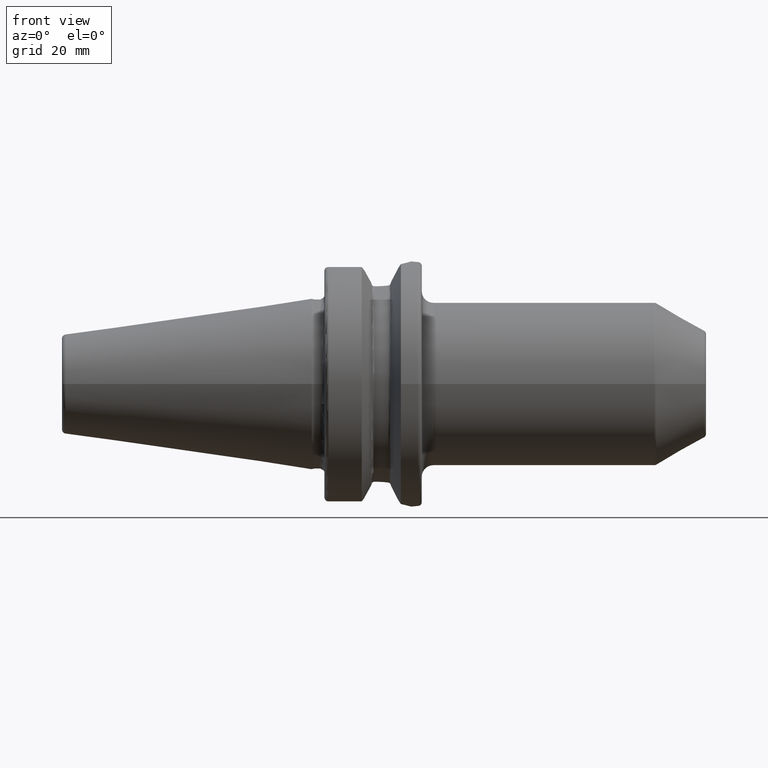
[diagram: clean part render]
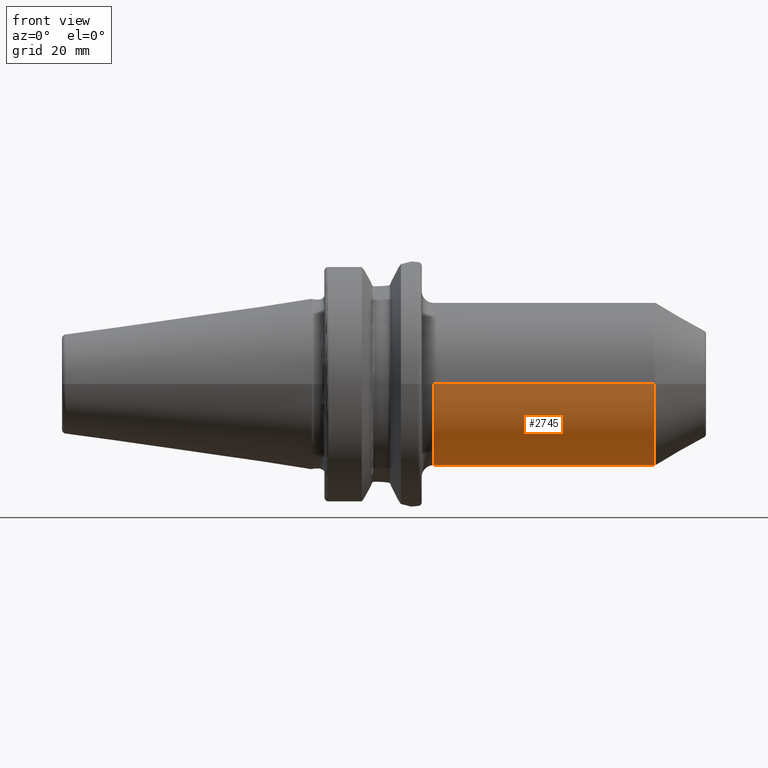
[diagram: same view with one face highlighted and labeled with its STEP entity id]
A machine part, front view. The second image highlights one B-rep face of the part: STEP entity #2745.
In plain terms, the highlighted cylindrical surface (partial cylindrical patch) has radius 21 mm, axis along (1, 0, 0).
Its self-contained STEP definition (entity closure, byte-faithful):
#866=CARTESIAN_POINT('',(8.26E1,2.1E1,0.E0));
#885=CARTESIAN_POINT('',(7.24E1,2.1E1,0.E0));
#897=CARTESIAN_POINT('',(8.673205080757E1,0.E0,0.E0));
#898=DIRECTION('',(-1.E0,0.E0,0.E0));
#899=DIRECTION('',(0.E0,1.E0,0.E0));
#900=AXIS2_PLACEMENT_3D('',#897,#898,#899);
#902=DIRECTION('',(-1.E0,0.E0,4.692377701009E-13));
#903=VECTOR('',#902,4.132050807569E0);
#904=CARTESIAN_POINT('',(8.673205080757E1,2.1E1,-1.937628427748E-12));
#905=LINE('',#904,#903);
#906=CARTESIAN_POINT('',(7.24E1,2.1E1,0.E0));
#907=CARTESIAN_POINT('',(7.24E1,2.1E1,-3.120833761628E-1));
#908=CARTESIAN_POINT('',(7.245594912861E1,2.098629632983E1,-9.277207349751E-1));
#909=CARTESIAN_POINT('',(7.271319860121E1,2.092531205576E1,-1.842995562252E0));
#910=CARTESIAN_POINT('',(7.313320620521E1,2.083218391533E1,-2.691100684063E0));
#911=CARTESIAN_POINT('',(7.370880463506E1,2.071791306426E1,-3.455260835791E0));
#912=CARTESIAN_POINT('',(7.441097635934E1,2.059954871467E1,-4.095342612871E0));
#913=CARTESIAN_POINT('',(7.522722337886E1,2.049189688120E1,-4.598203443930E0));
#914=CARTESIAN_POINT('',(7.610349091723E1,2.041239511509E1,-4.935097754867E0));
#915=CARTESIAN_POINT('',(7.703453037285E1,2.036947596656E1,-5.107395408550E0));
#916=CARTESIAN_POINT('',(7.796447621994E1,2.036944885397E1,-5.107505620358E0));
#917=CARTESIAN_POINT('',(7.889573062844E1,2.041234529035E1,-4.935293361558E0));
#918=CARTESIAN_POINT('',(7.977167106705E1,2.049176920913E1,-4.598783942138E0));
#919=CARTESIAN_POINT('',(8.058865920744E1,2.059949497822E1,-4.095579468699E0));
#920=CARTESIAN_POINT('',(8.129000797984E1,2.071769681257E1,-3.456559886511E0));
#921=CARTESIAN_POINT('',(8.186658461553E1,2.083213406699E1,-2.691509273024E0));
#922=CARTESIAN_POINT('',(8.228643678734E1,2.092522989534E1,-1.843934746462E0));
#923=CARTESIAN_POINT('',(8.254409536266E1,2.098630553696E1,-9.277719643677E-1));
#924=CARTESIAN_POINT('',(8.26E1,2.1E1,-3.120915795046E-1));
#925=CARTESIAN_POINT('',(8.26E1,2.1E1,0.E0));
#927=DIRECTION('',(-1.E0,0.E0,3.472114498431E-14));
#928=VECTOR('',#927,4.24E1);
#929=CARTESIAN_POINT('',(7.24E1,2.1E1,0.E0));
#930=LINE('',#929,#928);
#931=CARTESIAN_POINT('',(3.E1,0.E0,0.E0));
#932=DIRECTION('',(1.E0,0.E0,0.E0));
#933=DIRECTION('',(0.E0,-1.E0,0.E0));
#934=AXIS2_PLACEMENT_3D('',#931,#932,#933);
#936=DIRECTION('',(-1.E0,0.E0,-6.012692982096E-14));
#937=VECTOR('',#936,5.673205080757E1);
#938=CARTESIAN_POINT('',(8.673205080757E1,-2.1E1,1.936983976993E-12));
#939=LINE('',#938,#937);
#1527=VERTEX_POINT('',#866);
#1528=VERTEX_POINT('',#885);
#1535=CARTESIAN_POINT('',(3.E1,-2.1E1,0.E0));
#1536=CARTESIAN_POINT('',(3.E1,2.1E1,0.E0));
#1537=VERTEX_POINT('',#1535);
#1538=VERTEX_POINT('',#1536);
#1539=CARTESIAN_POINT('',(8.673205080757E1,2.1E1,0.E0));
#1540=CARTESIAN_POINT('',(8.673205080757E1,-2.1E1,0.E0));
#1541=VERTEX_POINT('',#1539);
#1542=VERTEX_POINT('',#1540);
#2731=CARTESIAN_POINT('',(2.335E1,0.E0,0.E0));
#2732=DIRECTION('',(1.E0,0.E0,0.E0));
#2733=DIRECTION('',(0.E0,-1.E0,0.E0));
#2734=AXIS2_PLACEMENT_3D('',#2731,#2732,#2733);
#2735=CYLINDRICAL_SURFACE('',#2734,2.1E1);
#2736=ORIENTED_EDGE('',*,*,#2722,.F.);
#2737=ORIENTED_EDGE('',*,*,#2697,.T.);
#2739=ORIENTED_EDGE('',*,*,#2738,.F.);
#2740=ORIENTED_EDGE('',*,*,#2693,.T.);
#2741=ORIENTED_EDGE('',*,*,#2663,.F.);
#2742=ORIENTED_EDGE('',*,*,#2690,.F.);
#2743=EDGE_LOOP('',(#2736,#2737,#2739,#2740,#2741,#2742));
#2744=FACE_OUTER_BOUND('',#2743,.F.);
#2745=ADVANCED_FACE('',(#2744),#2735,.T.);
#901=CIRCLE('',#900,2.1E1);
#926=B_SPLINE_CURVE_WITH_KNOTS('',3,(#906,#907,#908,#909,#910,#911,#912,#913,
#914,#915,#916,#917,#918,#919,#920,#921,#922,#923,#924,#925),.UNSPECIFIED.,.F.,
.F.,(4,1,1,1,1,1,1,1,1,1,1,1,1,1,1,1,1,4),(0.E0,5.882352941176E-2,
1.176470588235E-1,1.764705882353E-1,2.352941176471E-1,2.941176470588E-1,
3.529411764706E-1,4.117647058824E-1,4.705882352941E-1,5.294117647059E-1,
5.882352941176E-1,6.470588235294E-1,7.058823529412E-1,7.647058823529E-1,
8.235294117647E-1,8.823529411765E-1,9.411764705882E-1,1.E0),.UNSPECIFIED.);
#935=CIRCLE('',#934,2.1E1);
#2663=EDGE_CURVE('',#1537,#1538,#935,.T.);
#2690=EDGE_CURVE('',#1542,#1537,#939,.T.);
#2693=EDGE_CURVE('',#1528,#1538,#930,.T.);
#2697=EDGE_CURVE('',#1541,#1527,#905,.T.);
#2722=EDGE_CURVE('',#1541,#1542,#901,.T.);
#2738=EDGE_CURVE('',#1528,#1527,#926,.T.);